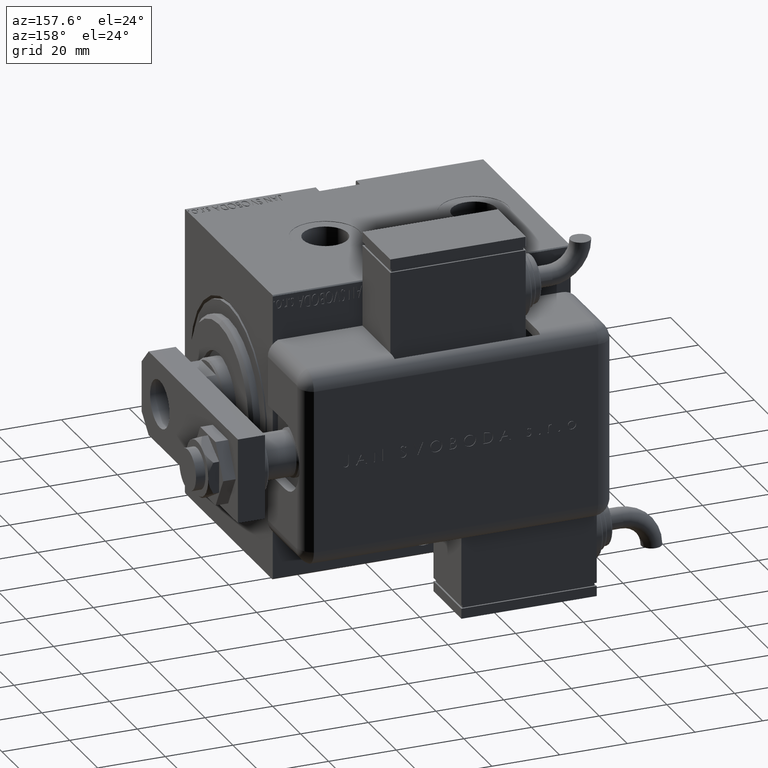
[diagram: clean part render]
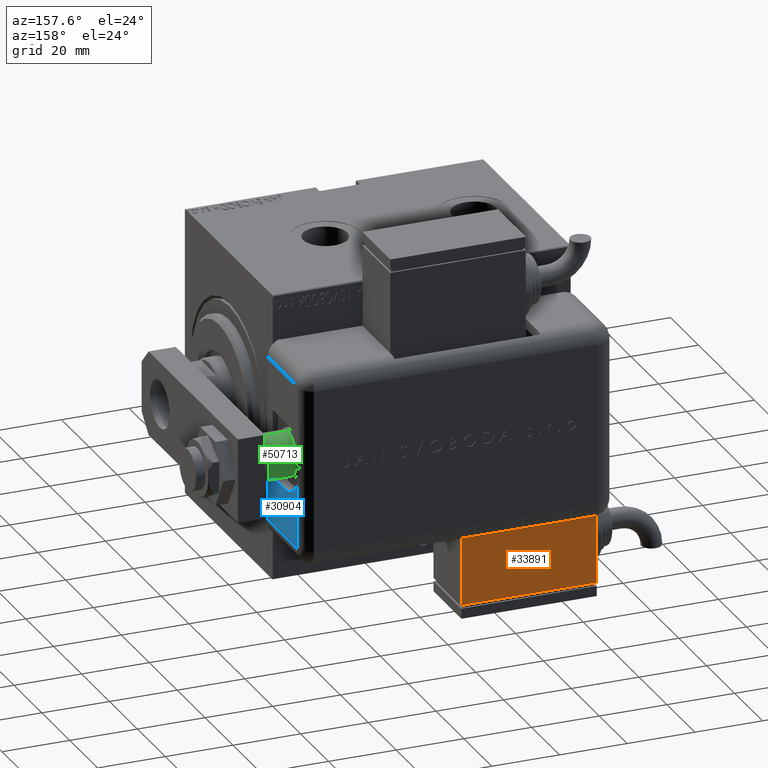
[diagram: same view with three faces highlighted in distinct colors, each labeled with its STEP entity id]
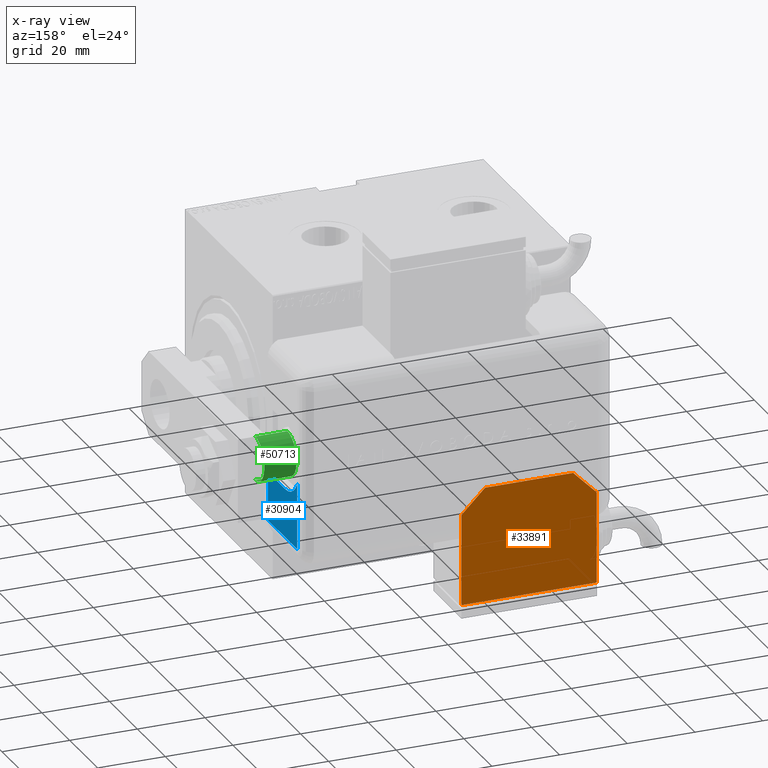
[diagram: x-ray of the same camera — body ghosted, the three highlighted faces saturated]
A machine part, auxiliary view with three faces highlighted in distinct colors.
The next image is the same camera in x-ray (body ghosted, the three faces saturated) — at least one of them is partly hidden behind the body in this view.
Their STEP definitions:

[orange] entity #33891 — the highlighted planar face has unit normal (0, -1, -0).
#696 = VERTEX_POINT ( 'NONE', #47881 ) ;
#1318 = AXIS2_PLACEMENT_3D ( 'NONE', #48214, #16488, #38716 ) ;
#2497 = VERTEX_POINT ( 'NONE', #7966 ) ;
#2760 = VERTEX_POINT ( 'NONE', #50933 ) ;
#3512 = DIRECTION ( 'NONE',  ( 1.000000000000000000, 0.000000000000000000, 0.000000000000000000 ) ) ;
#4500 = ORIENTED_EDGE ( 'NONE', *, *, #45252, .F. ) ;
#5191 = EDGE_CURVE ( 'NONE', #10294, #696, #49841, .T. ) ;
#5572 = EDGE_CURVE ( 'NONE', #49966, #696, #7680, .T. ) ;
#7680 = LINE ( 'NONE', #16861, #39263 ) ;
#7966 = CARTESIAN_POINT ( 'NONE',  ( -19.99999999999994316, -13.49999999999996092, -10.00000000000000000 ) ) ;
#9214 = CARTESIAN_POINT ( 'NONE',  ( 9.999999999999984013, 23.50000000000009592, -10.00000000000000000 ) ) ;
#9540 = DIRECTION ( 'NONE',  ( -0.7071067811865356934, -0.7071067811865593411, -0.000000000000000000 ) ) ;
#10107 = VECTOR ( 'NONE', #47534, 1000.000000000000000 ) ;
#10294 = VERTEX_POINT ( 'NONE', #30313 ) ;
#12505 = ORIENTED_EDGE ( 'NONE', *, *, #5191, .F. ) ;
#15116 = LINE ( 'NONE', #15699, #29592 ) ;
#15699 = CARTESIAN_POINT ( 'NONE',  ( -19.99999999999994316, -13.49999999999996092, -10.00000000000000000 ) ) ;
#16488 = DIRECTION ( 'NONE',  ( 0.000000000000000000, 0.000000000000000000, 1.000000000000000000 ) ) ;
#16861 = CARTESIAN_POINT ( 'NONE',  ( 0.000000000000000000, 20.50000000000009592, -10.00000000000000000 ) ) ;
#18884 = LINE ( 'NONE', #55979, #39168 ) ;
#20983 = ORIENTED_EDGE ( 'NONE', *, *, #26897, .F. ) ;
#21481 = EDGE_CURVE ( 'NONE', #49966, #2760, #45097, .T. ) ;
#25130 = CARTESIAN_POINT ( 'NONE',  ( 20.00000000000005329, -13.49999999999996092, -10.00000000000000000 ) ) ;
#26897 = EDGE_CURVE ( 'NONE', #2760, #53922, #29501, .T. ) ;
#27498 = VERTEX_POINT ( 'NONE', #25130 ) ;
#27758 = DIRECTION ( 'NONE',  ( 1.284980352575412699E-16, 1.000000000000000000, 0.000000000000000000 ) ) ;
#28135 = DIRECTION ( 'NONE',  ( -0.7071067811865479058, 0.7071067811865470176, -0.000000000000000000 ) ) ;
#29501 = LINE ( 'NONE', #29793, #51261 ) ;
#29592 = VECTOR ( 'NONE', #51592, 1000.000000000000000 ) ;
#29793 = CARTESIAN_POINT ( 'NONE',  ( -19.99999999999994316, -13.49999999999996092, -10.00000000000000000 ) ) ;
#30313 = CARTESIAN_POINT ( 'NONE',  ( 20.00000000000005684, 13.50000000000003730, -10.00000000000000000 ) ) ;
#30578 = EDGE_CURVE ( 'NONE', #2497, #27498, #15116, .T. ) ;
#30974 = ORIENTED_EDGE ( 'NONE', *, *, #30578, .F. ) ;
#31679 = VECTOR ( 'NONE', #28135, 1000.000000000000114 ) ;
#33891 = ADVANCED_FACE ( 'NONE', ( #43457 ), #42868, .F. ) ;
#35063 = CARTESIAN_POINT ( 'NONE',  ( -19.99999999999993960, 2.569960705150834076E-15, -9.999999999999996447 ) ) ;
#37425 = EDGE_CURVE ( 'NONE', #27498, #10294, #18884, .T. ) ;
#38329 = LINE ( 'NONE', #55590, #10107 ) ;
#38716 = DIRECTION ( 'NONE',  ( 1.000000000000000000, 0.000000000000000000, -0.000000000000000000 ) ) ;
#39168 = VECTOR ( 'NONE', #27758, 1000.000000000000000 ) ;
#39263 = VECTOR ( 'NONE', #3512, 1000.000000000000000 ) ;
#42868 = PLANE ( 'NONE',  #1318 ) ;
#43457 = FACE_OUTER_BOUND ( 'NONE', #52987, .T. ) ;
#43648 = ORIENTED_EDGE ( 'NONE', *, *, #5572, .T. ) ;
#45097 = LINE ( 'NONE', #55230, #45407 ) ;
#45252 = EDGE_CURVE ( 'NONE', #53922, #2497, #38329, .T. ) ;
#45407 = VECTOR ( 'NONE', #9540, 1000.000000000000000 ) ;
#47470 = ORIENTED_EDGE ( 'NONE', *, *, #37425, .F. ) ;
#47534 = DIRECTION ( 'NONE',  ( -1.284980352575421081E-16, -1.000000000000000000, -0.000000000000000000 ) ) ;
#47881 = CARTESIAN_POINT ( 'NONE',  ( 12.99999999999999112, 20.50000000000009592, -10.00000000000000000 ) ) ;
#48214 = CARTESIAN_POINT ( 'NONE',  ( 0.000000000000000000, 0.000000000000000000, -10.00000000000000000 ) ) ;
#49183 = CARTESIAN_POINT ( 'NONE',  ( -12.99999999999994138, 20.50000000000009592, -10.00000000000000000 ) ) ;
#49841 = LINE ( 'NONE', #9214, #31679 ) ;
#49966 = VERTEX_POINT ( 'NONE', #49183 ) ;
#50747 = ORIENTED_EDGE ( 'NONE', *, *, #21481, .F. ) ;
#50933 = CARTESIAN_POINT ( 'NONE',  ( -19.99999999999993960, 13.49999999999986500, -10.00000000000000000 ) ) ;
#51261 = VECTOR ( 'NONE', #51481, 1000.000000000000000 ) ;
#51481 = DIRECTION ( 'NONE',  ( -1.284980352575421081E-16, -1.000000000000000000, -0.000000000000000000 ) ) ;
#51592 = DIRECTION ( 'NONE',  ( 1.000000000000000000, 0.000000000000000000, 0.000000000000000000 ) ) ;
#52987 = EDGE_LOOP ( 'NONE', ( #50747, #43648, #12505, #47470, #30974, #4500, #20983 ) ) ;
#53922 = VERTEX_POINT ( 'NONE', #35063 ) ;
#55230 = CARTESIAN_POINT ( 'NONE',  ( -19.99999999999993960, 13.49999999999986500, -10.00000000000000000 ) ) ;
#55590 = CARTESIAN_POINT ( 'NONE',  ( -19.99999999999994316, -13.49999999999996092, -10.00000000000000000 ) ) ;
#55979 = CARTESIAN_POINT ( 'NONE',  ( 20.00000000000005329, -13.49999999999996092, -10.00000000000000000 ) ) ;

[blue] entity #30904 — the highlighted planar face has unit normal (1, 0, 0).
#238 = CARTESIAN_POINT ( 'NONE',  ( 10.00000000000000000, 12.49999964024999599, 92.00000000000000000 ) ) ;
#3811 = VERTEX_POINT ( 'NONE', #4589 ) ;
#4589 = CARTESIAN_POINT ( 'NONE',  ( 23.99999999999999289, 21.21742430504414045, 92.00000000000000000 ) ) ;
#5914 = AXIS2_PLACEMENT_3D ( 'NONE', #55997, #15918, #46181 ) ;
#6326 = ORIENTED_EDGE ( 'NONE', *, *, #54823, .T. ) ;
#6451 = EDGE_CURVE ( 'NONE', #50690, #3811, #40219, .T. ) ;
#8149 = VERTEX_POINT ( 'NONE', #40714 ) ;
#8680 = ORIENTED_EDGE ( 'NONE', *, *, #36900, .T. ) ;
#8794 = VERTEX_POINT ( 'NONE', #238 ) ;
#11069 = EDGE_CURVE ( 'NONE', #8794, #22704, #55615, .T. ) ;
#11249 = DIRECTION ( 'NONE',  ( 1.000000000000000000, 0.000000000000000000, 0.000000000000000000 ) ) ;
#11372 = VERTEX_POINT ( 'NONE', #37556 ) ;
#13157 = ORIENTED_EDGE ( 'NONE', *, *, #6451, .T. ) ;
#14021 = DIRECTION ( 'NONE',  ( -1.000000000000000000, 0.000000000000000000, -0.000000000000000000 ) ) ;
#15502 = ORIENTED_EDGE ( 'NONE', *, *, #48091, .T. ) ;
#15918 = DIRECTION ( 'NONE',  ( 0.000000000000000000, 0.000000000000000000, 1.000000000000000000 ) ) ;
#16755 = AXIS2_PLACEMENT_3D ( 'NONE', #51868, #42361, #11249 ) ;
#17555 = LINE ( 'NONE', #35638, #39537 ) ;
#18712 = CARTESIAN_POINT ( 'NONE',  ( -28.99999999999999645, -9.421223957302265857E-15, 92.00000000000000000 ) ) ;
#19189 = PLANE ( 'NONE',  #5914 ) ;
#19749 = VECTOR ( 'NONE', #23442, 1000.000000000000000 ) ;
#19893 = CARTESIAN_POINT ( 'NONE',  ( 23.99999999999999289, 20.79999999999998295, 92.00000000000000000 ) ) ;
#20237 = DIRECTION ( 'NONE',  ( -2.775557641443440638E-16, 1.000000000000000000, -0.000000000000000000 ) ) ;
#21853 = DIRECTION ( 'NONE',  ( 0.000000000000000000, 0.000000000000000000, 1.000000000000000000 ) ) ;
#22704 = VERTEX_POINT ( 'NONE', #23378 ) ;
#23378 = CARTESIAN_POINT ( 'NONE',  ( 4.899643580265684584, 21.21742430504414045, 92.00000000000000000 ) ) ;
#23442 = DIRECTION ( 'NONE',  ( 1.000000000000000000, 0.000000000000000000, 0.000000000000000000 ) ) ;
#27223 = EDGE_CURVE ( 'NONE', #11372, #8794, #52007, .T. ) ;
#27760 = VECTOR ( 'NONE', #48136, 1000.000000000000000 ) ;
#30393 = VECTOR ( 'NONE', #20237, 1000.000000000000000 ) ;
#30904 = ADVANCED_FACE ( 'NONE', ( #37861 ), #19189, .T. ) ;
#33379 = EDGE_LOOP ( 'NONE', ( #39326, #35698, #6326, #8680, #13157, #15502 ) ) ;
#33889 = CARTESIAN_POINT ( 'NONE',  ( 9.999999999999998224, 12.49999964024999599, 92.00000000000000000 ) ) ;
#35638 = CARTESIAN_POINT ( 'NONE',  ( -23.99999999999999289, 21.21742430504414045, 92.00000000000000000 ) ) ;
#35698 = ORIENTED_EDGE ( 'NONE', *, *, #27223, .F. ) ;
#36900 = EDGE_CURVE ( 'NONE', #8149, #50690, #39221, .T. ) ;
#37556 = CARTESIAN_POINT ( 'NONE',  ( 10.00000000000000178, -8.673617379884035472E-16, 92.00000000000000000 ) ) ;
#37861 = FACE_OUTER_BOUND ( 'NONE', #33379, .T. ) ;
#37953 = LINE ( 'NONE', #18712, #19749 ) ;
#39221 = LINE ( 'NONE', #52891, #27760 ) ;
#39326 = ORIENTED_EDGE ( 'NONE', *, *, #11069, .F. ) ;
#39537 = VECTOR ( 'NONE', #14021, 1000.000000000000000 ) ;
#40219 = CIRCLE ( 'NONE', #45914, 0.4174243050441631131 ) ;
#40714 = CARTESIAN_POINT ( 'NONE',  ( 24.41742430504415751, -9.421223957302265857E-15, 92.00000000000000000 ) ) ;
#42361 = DIRECTION ( 'NONE',  ( 0.000000000000000000, 0.000000000000000000, 1.000000000000000000 ) ) ;
#45462 = CARTESIAN_POINT ( 'NONE',  ( 24.41742430504415751, 20.79999999999998295, 92.00000000000000000 ) ) ;
#45914 = AXIS2_PLACEMENT_3D ( 'NONE', #19893, #21853, #53053 ) ;
#46181 = DIRECTION ( 'NONE',  ( 1.000000000000000000, 0.000000000000000000, -0.000000000000000000 ) ) ;
#48091 = EDGE_CURVE ( 'NONE', #3811, #22704, #17555, .T. ) ;
#48136 = DIRECTION ( 'NONE',  ( 0.000000000000000000, 1.000000000000000000, -0.000000000000000000 ) ) ;
#50690 = VERTEX_POINT ( 'NONE', #45462 ) ;
#51868 = CARTESIAN_POINT ( 'NONE',  ( -1.734723475976807094E-15, 12.49999964024999599, 92.00000000000000000 ) ) ;
#52007 = LINE ( 'NONE', #33889, #30393 ) ;
#52891 = CARTESIAN_POINT ( 'NONE',  ( 24.41742430504415751, 20.79999999999998295, 92.00000000000000000 ) ) ;
#53053 = DIRECTION ( 'NONE',  ( 1.000000000000000000, 0.000000000000000000, 0.000000000000000000 ) ) ;
#54823 = EDGE_CURVE ( 'NONE', #11372, #8149, #37953, .T. ) ;
#55615 = CIRCLE ( 'NONE', #16755, 10.00000000000000178 ) ;
#55997 = CARTESIAN_POINT ( 'NONE',  ( 23.99999999999999289, 20.79999999999998295, 92.00000000000000000 ) ) ;

[green] entity #50713 — the highlighted cylindrical surface (edge-blend (fillet) strip) has radius 6.5 mm, axis along (-1, 0, 0).
#236 = ORIENTED_EDGE ( 'NONE', *, *, #27963, .F. ) ;
#2728 = AXIS2_PLACEMENT_3D ( 'NONE', #40721, #46052, #49330 ) ;
#2832 = EDGE_CURVE ( 'NONE', #56336, #41523, #39602, .T. ) ;
#3703 = DIRECTION ( 'NONE',  ( -0.000000000000000000, -0.000000000000000000, 1.000000000000000000 ) ) ;
#4036 = EDGE_LOOP ( 'NONE', ( #20753, #41187, #52341, #236 ) ) ;
#8059 = DIRECTION ( 'NONE',  ( 1.000000000000000000, 0.000000000000000000, 0.000000000000000000 ) ) ;
#13238 = CIRCLE ( 'NONE', #46379, 6.500000000000000888 ) ;
#16154 = CARTESIAN_POINT ( 'NONE',  ( 0.000000000000000000, 0.000000000000000000, -8.000000000000000000 ) ) ;
#18305 = VECTOR ( 'NONE', #30400, 1000.000000000000000 ) ;
#20753 = ORIENTED_EDGE ( 'NONE', *, *, #23819, .F. ) ;
#20969 = VECTOR ( 'NONE', #3703, 1000.000000000000000 ) ;
#22920 = CYLINDRICAL_SURFACE ( 'NONE', #2728, 6.500000000000000888 ) ;
#23819 = EDGE_CURVE ( 'NONE', #56336, #35297, #13238, .T. ) ;
#24218 = EDGE_CURVE ( 'NONE', #41523, #58488, #31238, .T. ) ;
#26203 = LINE ( 'NONE', #53541, #20969 ) ;
#27963 = EDGE_CURVE ( 'NONE', #35297, #58488, #26203, .T. ) ;
#28073 = DIRECTION ( 'NONE',  ( -1.000000000000000000, 0.000000000000000000, 0.000000000000000000 ) ) ;
#30400 = DIRECTION ( 'NONE',  ( -0.000000000000000000, -0.000000000000000000, 1.000000000000000000 ) ) ;
#31238 = CIRCLE ( 'NONE', #50252, 6.500000000000000888 ) ;
#35138 = CARTESIAN_POINT ( 'NONE',  ( -6.500000000000000888, 7.960204194457796463E-16, -8.000000000000000000 ) ) ;
#35297 = VERTEX_POINT ( 'NONE', #51026 ) ;
#35972 = FACE_OUTER_BOUND ( 'NONE', #4036, .T. ) ;
#37154 = CARTESIAN_POINT ( 'NONE',  ( 0.000000000000000000, 0.000000000000000000, 1.500000000000026201 ) ) ;
#39602 = LINE ( 'NONE', #35138, #18305 ) ;
#40721 = CARTESIAN_POINT ( 'NONE',  ( 0.000000000000000000, 0.000000000000000000, -8.000000000000000000 ) ) ;
#41187 = ORIENTED_EDGE ( 'NONE', *, *, #2832, .T. ) ;
#41523 = VERTEX_POINT ( 'NONE', #53061 ) ;
#45782 = CARTESIAN_POINT ( 'NONE',  ( -6.500000000000000888, 7.960204194457796463E-16, -8.000000000000000000 ) ) ;
#46052 = DIRECTION ( 'NONE',  ( -0.000000000000000000, -0.000000000000000000, 1.000000000000000000 ) ) ;
#46186 = CARTESIAN_POINT ( 'NONE',  ( 6.500000000000000888, 0.000000000000000000, 1.500000000000026201 ) ) ;
#46379 = AXIS2_PLACEMENT_3D ( 'NONE', #16154, #47587, #28073 ) ;
#47587 = DIRECTION ( 'NONE',  ( 0.000000000000000000, 0.000000000000000000, -1.000000000000000000 ) ) ;
#48690 = DIRECTION ( 'NONE',  ( 0.000000000000000000, 0.000000000000000000, -1.000000000000000000 ) ) ;
#49330 = DIRECTION ( 'NONE',  ( 1.000000000000000000, 0.000000000000000000, 0.000000000000000000 ) ) ;
#50252 = AXIS2_PLACEMENT_3D ( 'NONE', #37154, #48690, #8059 ) ;
#50713 = ADVANCED_FACE ( 'NONE', ( #35972 ), #22920, .T. ) ;
#51026 = CARTESIAN_POINT ( 'NONE',  ( 6.500000000000000888, 0.000000000000000000, -8.000000000000000000 ) ) ;
#52341 = ORIENTED_EDGE ( 'NONE', *, *, #24218, .T. ) ;
#53061 = CARTESIAN_POINT ( 'NONE',  ( -6.500000000000000888, 7.960204194457796463E-16, 1.500000000000026201 ) ) ;
#53541 = CARTESIAN_POINT ( 'NONE',  ( 6.500000000000000888, 0.000000000000000000, -8.000000000000000000 ) ) ;
#56336 = VERTEX_POINT ( 'NONE', #45782 ) ;
#58488 = VERTEX_POINT ( 'NONE', #46186 ) ;